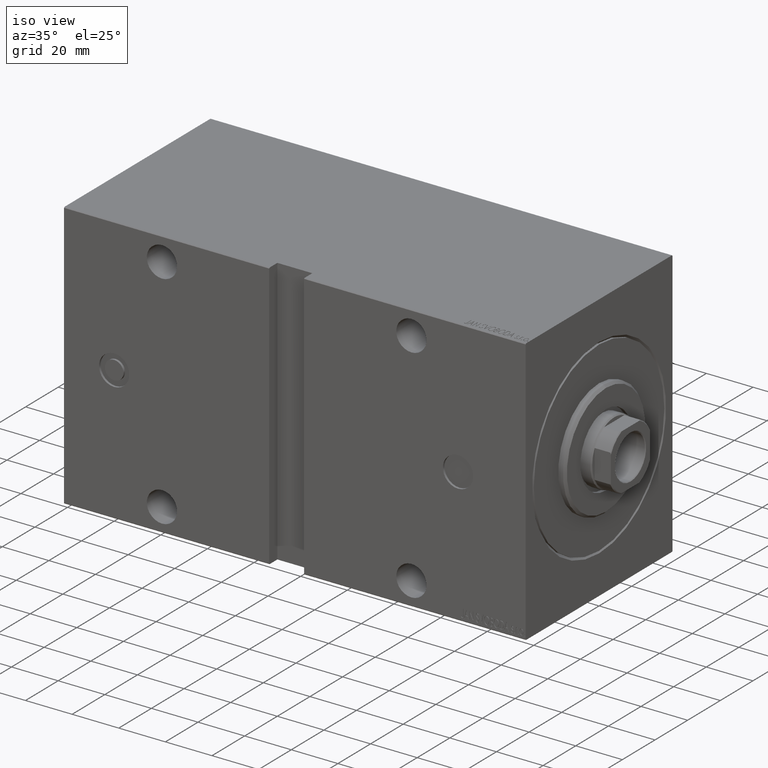
[diagram: clean part render]
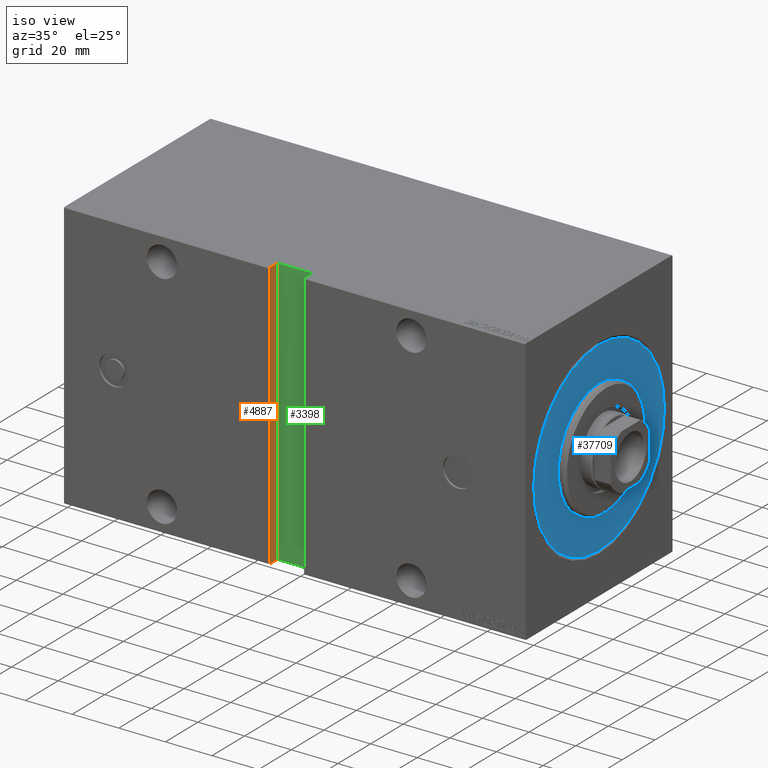
[diagram: same view with three faces highlighted in distinct colors, each labeled with its STEP entity id]
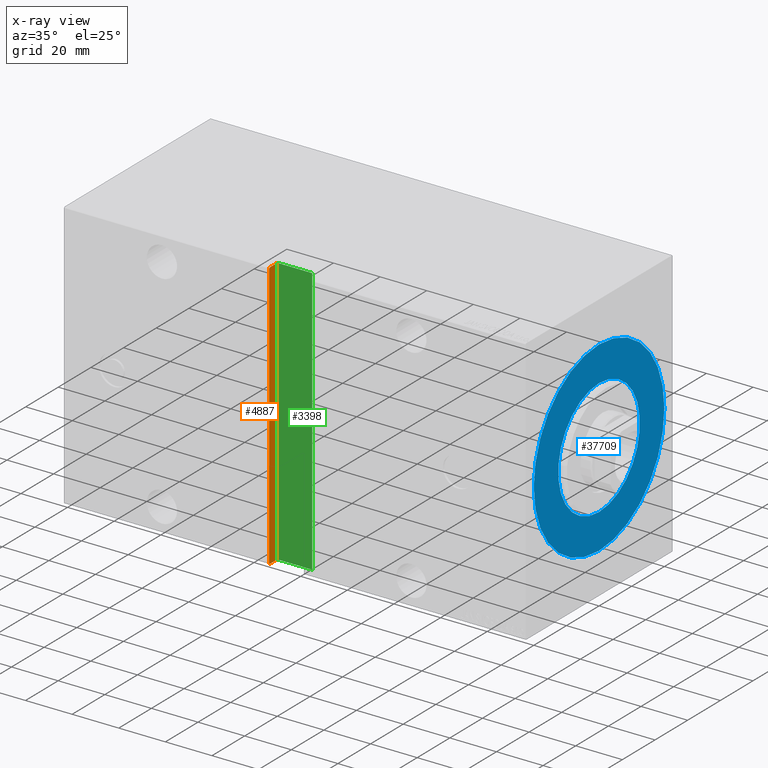
[diagram: x-ray of the same camera — body ghosted, the three highlighted faces saturated]
A machine part, iso view with three faces highlighted in distinct colors.
The next image is the same camera in x-ray (body ghosted, the three faces saturated) — at least one of them is partly hidden behind the body in this view.
Their STEP definitions:

[orange] entity #4887 — the highlighted planar face has unit normal (-1, -0, -0).
#247 = DIRECTION ( 'NONE',  ( -1.206764157201257045E-16, 1.206764157201257045E-16, -1.000000000000000000 ) ) ;
#449 = ORIENTED_EDGE ( 'NONE', *, *, #632, .T. ) ;
#486 = VECTOR ( 'NONE', #35142, 1000.000000000000000 ) ;
#632 = EDGE_CURVE ( 'NONE', #2168, #16119, #2388, .T. ) ;
#1527 = LINE ( 'NONE', #11920, #41077 ) ;
#2158 = LINE ( 'NONE', #28610, #3279 ) ;
#2168 = VERTEX_POINT ( 'NONE', #42356 ) ;
#2281 = DIRECTION ( 'NONE',  ( 1.000000000000000000, 1.522474264337735273E-32, -1.206764157201256552E-16 ) ) ;
#2388 = LINE ( 'NONE', #25797, #486 ) ;
#3279 = VECTOR ( 'NONE', #42060, 1000.000000000000000 ) ;
#3300 = CARTESIAN_POINT ( 'NONE',  ( 109.9999999999999716, 40.00000000000002132, -57.50000000000001421 ) ) ;
#4887 = ADVANCED_FACE ( 'NONE', ( #18745 ), #31983, .F. ) ;
#6583 = EDGE_CURVE ( 'NONE', #39062, #23081, #30476, .T. ) ;
#10750 = CARTESIAN_POINT ( 'NONE',  ( 109.9999999999999716, 45.00000000000002132, -57.20000000000006679 ) ) ;
#11920 = CARTESIAN_POINT ( 'NONE',  ( 109.9999999999999716, 40.00000000000002132, -57.50000000000001421 ) ) ;
#12256 = CARTESIAN_POINT ( 'NONE',  ( 109.9999999999999716, 40.00000000000002132, -57.50000000000001421 ) ) ;
#13909 = EDGE_CURVE ( 'NONE', #26144, #23081, #1527, .T. ) ;
#14213 = DIRECTION ( 'NONE',  ( -8.533111188498773846E-17, -0.7071067811865474617, -0.7071067811865474617 ) ) ;
#14653 = EDGE_LOOP ( 'NONE', ( #26720, #33224, #27819, #33017, #449, #15654 ) ) ;
#15654 = ORIENTED_EDGE ( 'NONE', *, *, #31498, .T. ) ;
#16119 = VERTEX_POINT ( 'NONE', #37330 ) ;
#16677 = VECTOR ( 'NONE', #14213, 1000.000000000000114 ) ;
#17100 = CARTESIAN_POINT ( 'NONE',  ( 109.9999999999999716, 45.00000000000002132, -57.50000000000001421 ) ) ;
#18745 = FACE_OUTER_BOUND ( 'NONE', #14653, .T. ) ;
#22213 = DIRECTION ( 'NONE',  ( -1.206764157201256552E-16, 0.000000000000000000, -1.000000000000000000 ) ) ;
#22663 = VERTEX_POINT ( 'NONE', #38128 ) ;
#22822 = CARTESIAN_POINT ( 'NONE',  ( 109.9999999999999716, 44.70000000000007390, -57.50000000000001421 ) ) ;
#23081 = VERTEX_POINT ( 'NONE', #22822 ) ;
#24558 = CARTESIAN_POINT ( 'NONE',  ( 109.9999999999999716, 45.00000000000002132, -57.20000000000006679 ) ) ;
#25510 = VECTOR ( 'NONE', #247, 1000.000000000000000 ) ;
#25797 = CARTESIAN_POINT ( 'NONE',  ( 109.9999999999999858, 40.00000000000000711, 57.50000000000002132 ) ) ;
#26144 = VERTEX_POINT ( 'NONE', #33921 ) ;
#26720 = ORIENTED_EDGE ( 'NONE', *, *, #32338, .T. ) ;
#27485 = AXIS2_PLACEMENT_3D ( 'NONE', #12256, #2281, #22213 ) ;
#27819 = ORIENTED_EDGE ( 'NONE', *, *, #13909, .F. ) ;
#28610 = CARTESIAN_POINT ( 'NONE',  ( 109.9999999999999858, 44.70000000000003837, 57.50000000000002132 ) ) ;
#30476 = LINE ( 'NONE', #10750, #16677 ) ;
#30531 = LINE ( 'NONE', #17100, #32402 ) ;
#30751 = DIRECTION ( 'NONE',  ( -1.206764157201257045E-16, 1.206764157201257045E-16, -1.000000000000000000 ) ) ;
#31498 = EDGE_CURVE ( 'NONE', #16119, #22663, #2158, .T. ) ;
#31983 = PLANE ( 'NONE',  #27485 ) ;
#32338 = EDGE_CURVE ( 'NONE', #22663, #39062, #30531, .T. ) ;
#32402 = VECTOR ( 'NONE', #30751, 1000.000000000000000 ) ;
#33003 = LINE ( 'NONE', #3300, #25510 ) ;
#33017 = ORIENTED_EDGE ( 'NONE', *, *, #39323, .F. ) ;
#33224 = ORIENTED_EDGE ( 'NONE', *, *, #6583, .T. ) ;
#33921 = CARTESIAN_POINT ( 'NONE',  ( 109.9999999999999858, 40.00000000000003553, -57.50000000000000711 ) ) ;
#35142 = DIRECTION ( 'NONE',  ( -0.000000000000000000, 1.000000000000000000, 1.261617073437677752E-16 ) ) ;
#37330 = CARTESIAN_POINT ( 'NONE',  ( 109.9999999999999858, 44.70000000000004547, 57.50000000000002132 ) ) ;
#38128 = CARTESIAN_POINT ( 'NONE',  ( 109.9999999999999858, 45.00000000000000711, 57.19999999999998153 ) ) ;
#39062 = VERTEX_POINT ( 'NONE', #24558 ) ;
#39323 = EDGE_CURVE ( 'NONE', #2168, #26144, #33003, .T. ) ;
#41077 = VECTOR ( 'NONE', #41433, 1000.000000000000000 ) ;
#41433 = DIRECTION ( 'NONE',  ( -0.000000000000000000, 1.000000000000000000, 1.261617073437677752E-16 ) ) ;
#42060 = DIRECTION ( 'NONE',  ( -8.533111188499268117E-17, 0.7071067811865066055, -0.7071067811865884289 ) ) ;
#42356 = CARTESIAN_POINT ( 'NONE',  ( 109.9999999999999858, 40.00000000000000711, 57.50000000000002132 ) ) ;

[blue] entity #37709 — the highlighted planar face has unit normal (1, 0, 0).
#4 = DIRECTION ( 'NONE',  ( 0.000000000000000000, 0.000000000000000000, -1.000000000000000000 ) ) ;
#204 = EDGE_LOOP ( 'NONE', ( #25656, #22625 ) ) ;
#4509 = DIRECTION ( 'NONE',  ( 1.000000000000000000, -0.000000000000000000, 0.000000000000000000 ) ) ;
#5424 = AXIS2_PLACEMENT_3D ( 'NONE', #10586, #4509, #27066 ) ;
#9708 = CARTESIAN_POINT ( 'NONE',  ( 0.000000000000000000, 0.000000000000000000, 25.00000000000000000 ) ) ;
#9998 = VERTEX_POINT ( 'NONE', #31544 ) ;
#10586 = CARTESIAN_POINT ( 'NONE',  ( 0.000000000000000000, 0.000000000000000000, 0.000000000000000000 ) ) ;
#11041 = DIRECTION ( 'NONE',  ( 0.000000000000000000, 0.000000000000000000, -1.000000000000000000 ) ) ;
#11245 = DIRECTION ( 'NONE',  ( 1.000000000000000000, 0.000000000000000000, 0.000000000000000000 ) ) ;
#12171 = FACE_BOUND ( 'NONE', #204, .T. ) ;
#12595 = CARTESIAN_POINT ( 'NONE',  ( 0.000000000000000000, 0.000000000000000000, 0.000000000000000000 ) ) ;
#12656 = VERTEX_POINT ( 'NONE', #9708 ) ;
#18234 = AXIS2_PLACEMENT_3D ( 'NONE', #42095, #29505, #4 ) ;
#18880 = DIRECTION ( 'NONE',  ( 1.000000000000000000, 0.000000000000000000, 0.000000000000000000 ) ) ;
#20493 = EDGE_CURVE ( 'NONE', #9998, #12656, #21703, .T. ) ;
#20906 = VERTEX_POINT ( 'NONE', #30673 ) ;
#21109 = CARTESIAN_POINT ( 'NONE',  ( 0.000000000000000000, 0.000000000000000000, -40.00000000000000000 ) ) ;
#21703 = CIRCLE ( 'NONE', #18234, 25.00000000000000000 ) ;
#22582 = EDGE_CURVE ( 'NONE', #20906, #25096, #37688, .T. ) ;
#22612 = CARTESIAN_POINT ( 'NONE',  ( 0.000000000000000000, 0.000000000000000000, 0.000000000000000000 ) ) ;
#22625 = ORIENTED_EDGE ( 'NONE', *, *, #20493, .F. ) ;
#22689 = CIRCLE ( 'NONE', #37224, 40.00000000000000000 ) ;
#24802 = AXIS2_PLACEMENT_3D ( 'NONE', #12595, #18880, #28872 ) ;
#25096 = VERTEX_POINT ( 'NONE', #21109 ) ;
#25226 = DIRECTION ( 'NONE',  ( 1.000000000000000000, 0.000000000000000000, 0.000000000000000000 ) ) ;
#25656 = ORIENTED_EDGE ( 'NONE', *, *, #38803, .F. ) ;
#27066 = DIRECTION ( 'NONE',  ( 0.000000000000000000, 0.000000000000000000, -1.000000000000000000 ) ) ;
#28872 = DIRECTION ( 'NONE',  ( 0.000000000000000000, 0.000000000000000000, -1.000000000000000000 ) ) ;
#29505 = DIRECTION ( 'NONE',  ( 1.000000000000000000, -0.000000000000000000, 0.000000000000000000 ) ) ;
#30673 = CARTESIAN_POINT ( 'NONE',  ( 0.000000000000000000, 4.898587196589413026E-15, 40.00000000000000000 ) ) ;
#30750 = AXIS2_PLACEMENT_3D ( 'NONE', #34239, #11245, #11041 ) ;
#31544 = CARTESIAN_POINT ( 'NONE',  ( 0.000000000000000000, 3.061616997868383043E-15, -25.00000000000000000 ) ) ;
#31663 = EDGE_LOOP ( 'NONE', ( #34594, #33580 ) ) ;
#31746 = CIRCLE ( 'NONE', #5424, 25.00000000000000000 ) ;
#33580 = ORIENTED_EDGE ( 'NONE', *, *, #22582, .T. ) ;
#34239 = CARTESIAN_POINT ( 'NONE',  ( 0.000000000000000000, 0.000000000000000000, 0.000000000000000000 ) ) ;
#34594 = ORIENTED_EDGE ( 'NONE', *, *, #36434, .T. ) ;
#35642 = DIRECTION ( 'NONE',  ( 0.000000000000000000, 0.000000000000000000, -1.000000000000000000 ) ) ;
#36022 = FACE_OUTER_BOUND ( 'NONE', #31663, .T. ) ;
#36434 = EDGE_CURVE ( 'NONE', #25096, #20906, #22689, .T. ) ;
#37224 = AXIS2_PLACEMENT_3D ( 'NONE', #22612, #25226, #35642 ) ;
#37688 = CIRCLE ( 'NONE', #30750, 40.00000000000000000 ) ;
#37709 = ADVANCED_FACE ( 'NONE', ( #36022, #12171 ), #42102, .T. ) ;
#38803 = EDGE_CURVE ( 'NONE', #12656, #9998, #31746, .T. ) ;
#42095 = CARTESIAN_POINT ( 'NONE',  ( 0.000000000000000000, 0.000000000000000000, 0.000000000000000000 ) ) ;
#42102 = PLANE ( 'NONE',  #24802 ) ;

[green] entity #3398 — the highlighted planar face has unit normal (-0, 1, -0).
#247 = DIRECTION ( 'NONE',  ( -1.206764157201257045E-16, 1.206764157201257045E-16, -1.000000000000000000 ) ) ;
#584 = ORIENTED_EDGE ( 'NONE', *, *, #39323, .T. ) ;
#863 = DIRECTION ( 'NONE',  ( 0.000000000000000000, 1.206764157201257045E-16, -1.000000000000000000 ) ) ;
#1813 = VECTOR ( 'NONE', #31894, 1000.000000000000000 ) ;
#2168 = VERTEX_POINT ( 'NONE', #42356 ) ;
#2190 = VERTEX_POINT ( 'NONE', #12644 ) ;
#3300 = CARTESIAN_POINT ( 'NONE',  ( 109.9999999999999716, 40.00000000000002132, -57.50000000000001421 ) ) ;
#3398 = ADVANCED_FACE ( 'NONE', ( #21244 ), #11264, .F. ) ;
#4338 = CARTESIAN_POINT ( 'NONE',  ( -2.512082536157262191E-30, 40.00000000000001421, 4.799630170686818023E-15 ) ) ;
#4552 = DIRECTION ( 'NONE',  ( 5.582405635905026143E-32, -1.000000000000000000, -1.206764157201257045E-16 ) ) ;
#7440 = CARTESIAN_POINT ( 'NONE',  ( 109.9999999999999716, 40.00000000000002132, -57.50000000000001421 ) ) ;
#7952 = LINE ( 'NONE', #17078, #8485 ) ;
#8485 = VECTOR ( 'NONE', #21186, 1000.000000000000000 ) ;
#8643 = EDGE_CURVE ( 'NONE', #26144, #2190, #33476, .T. ) ;
#11264 = PLANE ( 'NONE',  #11535 ) ;
#11535 = AXIS2_PLACEMENT_3D ( 'NONE', #4338, #4552, #863 ) ;
#12644 = CARTESIAN_POINT ( 'NONE',  ( 94.99999999999997158, 40.00000000000002132, -57.50000000000001421 ) ) ;
#13253 = EDGE_LOOP ( 'NONE', ( #29224, #29522, #584, #21679 ) ) ;
#13518 = DIRECTION ( 'NONE',  ( -1.000000000000000000, 0.000000000000000000, 0.000000000000000000 ) ) ;
#15652 = VERTEX_POINT ( 'NONE', #33332 ) ;
#17078 = CARTESIAN_POINT ( 'NONE',  ( 94.99999999999997158, 40.00000000000002132, -57.50000000000001421 ) ) ;
#17843 = EDGE_CURVE ( 'NONE', #2190, #15652, #7952, .T. ) ;
#18660 = CARTESIAN_POINT ( 'NONE',  ( 109.9999999999999858, 40.00000000000000711, 57.50000000000002132 ) ) ;
#21186 = DIRECTION ( 'NONE',  ( 0.000000000000000000, -1.206764157201257045E-16, 1.000000000000000000 ) ) ;
#21244 = FACE_OUTER_BOUND ( 'NONE', #13253, .T. ) ;
#21679 = ORIENTED_EDGE ( 'NONE', *, *, #8643, .T. ) ;
#25385 = LINE ( 'NONE', #18660, #1813 ) ;
#25510 = VECTOR ( 'NONE', #247, 1000.000000000000000 ) ;
#26144 = VERTEX_POINT ( 'NONE', #33921 ) ;
#26570 = EDGE_CURVE ( 'NONE', #15652, #2168, #25385, .T. ) ;
#29224 = ORIENTED_EDGE ( 'NONE', *, *, #17843, .T. ) ;
#29522 = ORIENTED_EDGE ( 'NONE', *, *, #26570, .T. ) ;
#31894 = DIRECTION ( 'NONE',  ( 1.000000000000000000, -0.000000000000000000, 4.625929269271481969E-16 ) ) ;
#33003 = LINE ( 'NONE', #3300, #25510 ) ;
#33332 = CARTESIAN_POINT ( 'NONE',  ( 94.99999999999997158, 40.00000000000000711, 57.50000000000001421 ) ) ;
#33476 = LINE ( 'NONE', #7440, #40953 ) ;
#33921 = CARTESIAN_POINT ( 'NONE',  ( 109.9999999999999858, 40.00000000000003553, -57.50000000000000711 ) ) ;
#39323 = EDGE_CURVE ( 'NONE', #2168, #26144, #33003, .T. ) ;
#40953 = VECTOR ( 'NONE', #13518, 1000.000000000000000 ) ;
#42356 = CARTESIAN_POINT ( 'NONE',  ( 109.9999999999999858, 40.00000000000000711, 57.50000000000002132 ) ) ;